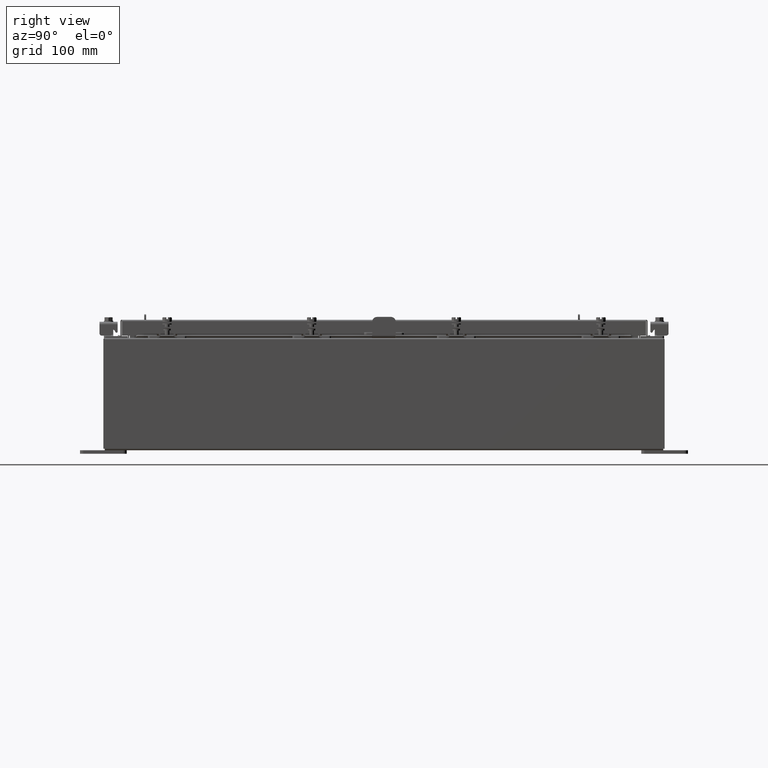
[diagram: clean part render]
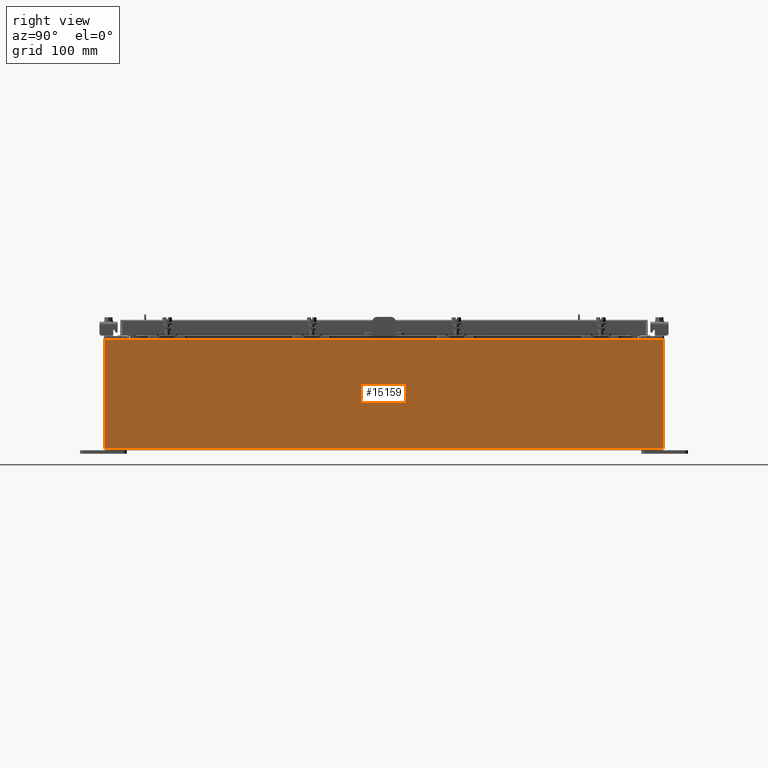
[diagram: same view with one face highlighted and labeled with its STEP entity id]
A machine part, right view. The second image highlights one B-rep face of the part: STEP entity #15159.
In plain terms, the highlighted planar face has unit normal (-1, 0, 0).
Its self-contained STEP definition (entity closure, byte-faithful):
#156 = DIRECTION ( 'NONE',  ( 3.319545939341922000E-015, 0.0000000000000000000, 1.000000000000000000 ) ) ;
#634 = CARTESIAN_POINT ( 'NONE',  ( 10.00000000000002000, -14.92529999999999800, 5.837600000000001000 ) ) ;
#636 = CARTESIAN_POINT ( 'NONE',  ( 10.00000000000002000, 14.92530000000000700, 5.837600000000001000 ) ) ;
#717 = ORIENTED_EDGE ( 'NONE', *, *, #14017, .F. ) ;
#2286 = EDGE_LOOP ( 'NONE', ( #18440, #23036, #717, #20258 ) ) ;
#2455 = DIRECTION ( 'NONE',  ( -0.0000000000000000000, -1.000000000000000000, -0.0000000000000000000 ) ) ;
#2645 = CARTESIAN_POINT ( 'NONE',  ( 10.00000000000000000, -14.92529999999999600, 0.01299999999999986400 ) ) ;
#3693 = EDGE_CURVE ( 'NONE', #5680, #18172, #10503, .T. ) ;
#5484 = CARTESIAN_POINT ( 'NONE',  ( 10.00000000000000000, 14.92530000000000500, 0.01299999999999986400 ) ) ;
#5680 = VERTEX_POINT ( 'NONE', #634 ) ;
#6725 = CARTESIAN_POINT ( 'NONE',  ( 10.00000000000000000, 14.92530000000000500, -3.345627304943080600E-014 ) ) ;
#8172 = DIRECTION ( 'NONE',  ( -3.319545939341922800E-015, 0.0000000000000000000, -1.000000000000000000 ) ) ;
#8471 = CARTESIAN_POINT ( 'NONE',  ( 10.00000000000002000, 14.92530000000000700, 5.837600000000001000 ) ) ;
#8540 = DIRECTION ( 'NONE',  ( 3.319545939341922800E-015, 0.0000000000000000000, 1.000000000000000000 ) ) ;
#9073 = PLANE ( 'NONE',  #17837 ) ;
#9955 = VECTOR ( 'NONE', #8172, 39.37007874015748100 ) ;
#10503 = LINE ( 'NONE', #18895, #9955 ) ;
#10851 = DIRECTION ( 'NONE',  ( -1.000000000000000000, 0.0000000000000000000, 3.319545939341922000E-015 ) ) ;
#14017 = EDGE_CURVE ( 'NONE', #17663, #18172, #22443, .T. ) ;
#14564 = VECTOR ( 'NONE', #8540, 39.37007874015748100 ) ;
#14975 = EDGE_CURVE ( 'NONE', #17663, #20520, #19300, .T. ) ;
#15159 = ADVANCED_FACE ( 'NONE', ( #15410 ), #9073, .F. ) ;
#15410 = FACE_OUTER_BOUND ( 'NONE', #2286, .T. ) ;
#15908 = VECTOR ( 'NONE', #2455, 39.37007874015748100 ) ;
#16929 = DIRECTION ( 'NONE',  ( -0.0000000000000000000, -1.000000000000000000, -0.0000000000000000000 ) ) ;
#17494 = CARTESIAN_POINT ( 'NONE',  ( 10.00000000000000000, -14.92529999999999600, 0.01299999999999985900 ) ) ;
#17663 = VERTEX_POINT ( 'NONE', #5484 ) ;
#17837 = AXIS2_PLACEMENT_3D ( 'NONE', #17957, #10851, #156 ) ;
#17957 = CARTESIAN_POINT ( 'NONE',  ( 10.00000000000000000, 0.0000000000000000000, -3.345627304943080600E-014 ) ) ;
#18172 = VERTEX_POINT ( 'NONE', #17494 ) ;
#18440 = ORIENTED_EDGE ( 'NONE', *, *, #20930, .T. ) ;
#18895 = CARTESIAN_POINT ( 'NONE',  ( 10.00000000000000000, -14.92529999999999600, -3.345627304943080600E-014 ) ) ;
#19300 = LINE ( 'NONE', #6725, #14564 ) ;
#20258 = ORIENTED_EDGE ( 'NONE', *, *, #14975, .T. ) ;
#20520 = VERTEX_POINT ( 'NONE', #8471 ) ;
#20930 = EDGE_CURVE ( 'NONE', #20520, #5680, #21764, .T. ) ;
#21764 = LINE ( 'NONE', #636, #15908 ) ;
#22443 = LINE ( 'NONE', #2645, #22985 ) ;
#22985 = VECTOR ( 'NONE', #16929, 39.37007874015748100 ) ;
#23036 = ORIENTED_EDGE ( 'NONE', *, *, #3693, .T. ) ;